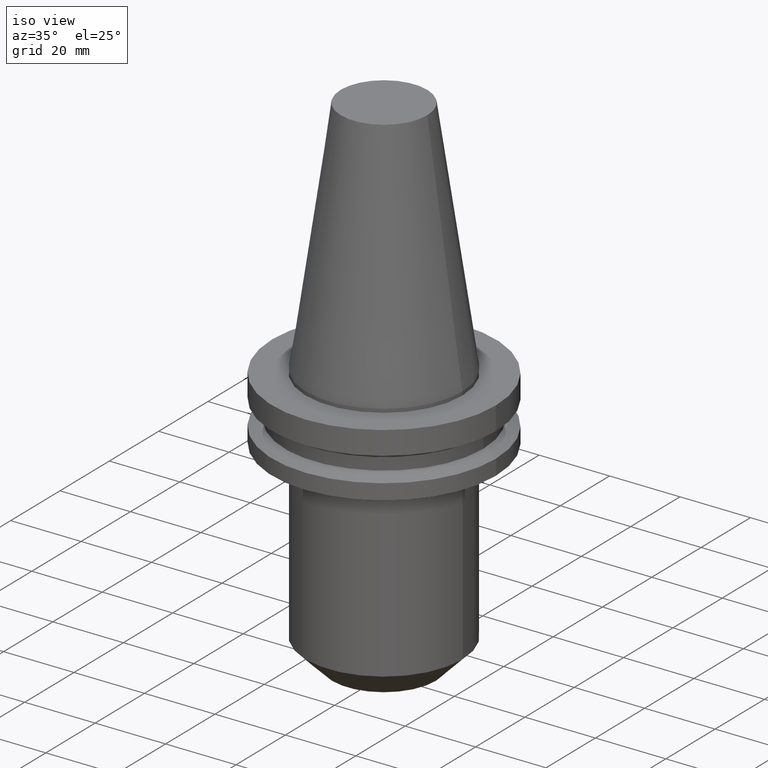
[diagram: clean part render]
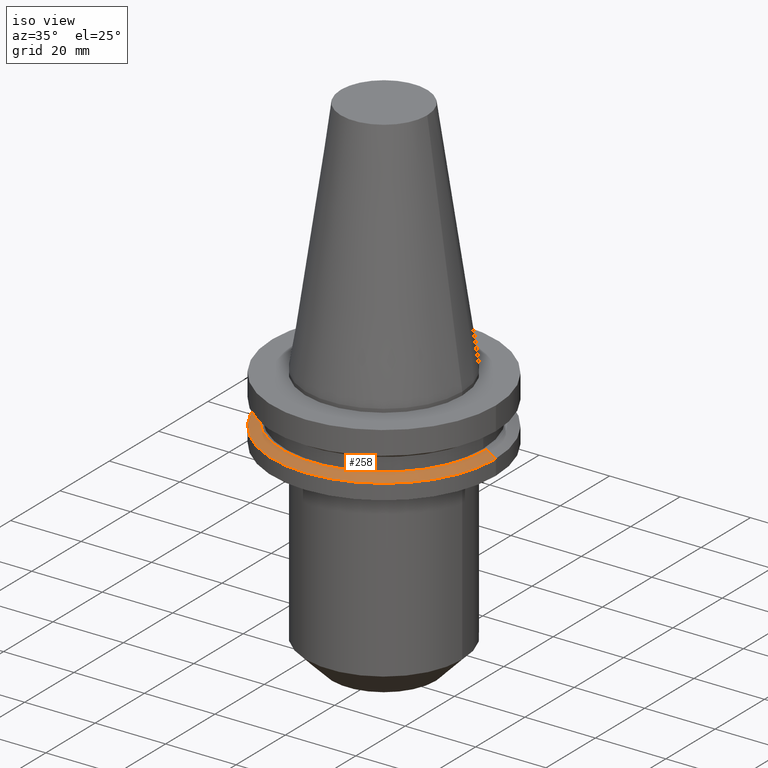
[diagram: same view with one face highlighted and labeled with its STEP entity id]
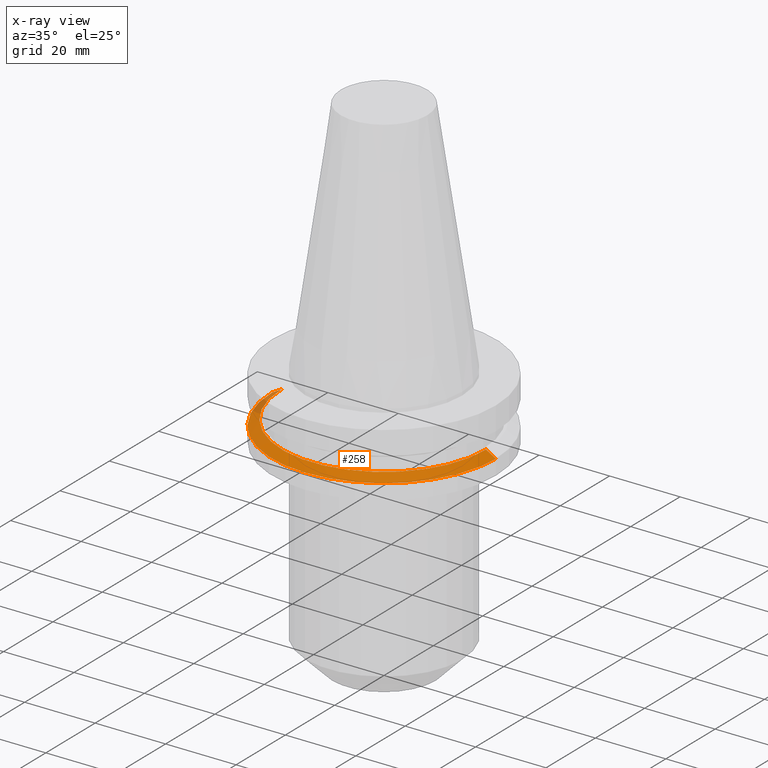
[diagram: x-ray of the same camera — body ghosted, the highlighted face saturated]
A machine part, iso view. The second image highlights one B-rep face of the part: STEP entity #258.
The next image is the same camera in x-ray: the body ghosted, the highlighted face saturated — about 4% of this face is hidden behind the body in this view.
In plain terms, the highlighted conical surface has half-angle 60 deg.
Its self-contained STEP definition (entity closure, byte-faithful):
#10 = DIRECTION ( 'NONE',  ( 0.000000000000000000, 0.000000000000000000, -1.000000000000000000 ) ) ;
#20 = DIRECTION ( 'NONE',  ( -0.000000000000000000, -0.000000000000000000, 1.000000000000000000 ) ) ;
#22 = DIRECTION ( 'NONE',  ( 0.8660254037844387076, 1.060575238724906915E-16, -0.4999999999999998890 ) ) ;
#31 = ORIENTED_EDGE ( 'NONE', *, *, #70, .F. ) ;
#36 = VERTEX_POINT ( 'NONE', #687 ) ;
#56 = FACE_OUTER_BOUND ( 'NONE', #553, .T. ) ;
#70 = EDGE_CURVE ( 'NONE', #619, #763, #386, .T. ) ;
#77 = VERTEX_POINT ( 'NONE', #436 ) ;
#126 = CARTESIAN_POINT ( 'NONE',  ( 0.000000000000000000, 0.000000000000000000, -14.65472339340266572 ) ) ;
#146 = ORIENTED_EDGE ( 'NONE', *, *, #564, .T. ) ;
#171 = CARTESIAN_POINT ( 'NONE',  ( 0.000000000000000000, 0.000000000000000000, -14.65472339340266572 ) ) ;
#192 = ORIENTED_EDGE ( 'NONE', *, *, #471, .F. ) ;
#200 = ORIENTED_EDGE ( 'NONE', *, *, #726, .T. ) ;
#257 = CARTESIAN_POINT ( 'NONE',  ( 28.97919780457008088, 3.718590885307660666E-15, -13.05499999999999794 ) ) ;
#258 = ADVANCED_FACE ( 'NONE', ( #56 ), #339, .T. ) ;
#275 = CARTESIAN_POINT ( 'NONE',  ( 31.75000000000000000, 0.000000000000000000, -14.65472339340266572 ) ) ;
#301 = DIRECTION ( 'NONE',  ( 1.000000000000000000, 0.000000000000000000, 0.000000000000000000 ) ) ;
#310 = DIRECTION ( 'NONE',  ( 1.000000000000000000, 0.000000000000000000, 0.000000000000000000 ) ) ;
#314 = CARTESIAN_POINT ( 'NONE',  ( 0.000000000000000000, 0.000000000000000000, -13.05499999999999794 ) ) ;
#339 = CONICAL_SURFACE ( 'NONE', #683, 31.75000000000000000, 1.047197551196597853 ) ;
#381 = DIRECTION ( 'NONE',  ( -0.000000000000000000, -0.000000000000000000, 1.000000000000000000 ) ) ;
#386 = LINE ( 'NONE', #629, #607 ) ;
#413 = CIRCLE ( 'NONE', #724, 28.97919780457008088 ) ;
#436 = CARTESIAN_POINT ( 'NONE',  ( -28.97919780457008088, 0.000000000000000000, -13.05499999999999794 ) ) ;
#469 = AXIS2_PLACEMENT_3D ( 'NONE', #126, #381, #301 ) ;
#471 = EDGE_CURVE ( 'NONE', #77, #619, #413, .T. ) ;
#553 = EDGE_LOOP ( 'NONE', ( #31, #192, #200, #146 ) ) ;
#564 = EDGE_CURVE ( 'NONE', #36, #763, #737, .T. ) ;
#578 = DIRECTION ( 'NONE',  ( -0.8660254037844387076, 0.000000000000000000, -0.4999999999999998890 ) ) ;
#607 = VECTOR ( 'NONE', #22, 1000.000000000000000 ) ;
#619 = VERTEX_POINT ( 'NONE', #257 ) ;
#629 = CARTESIAN_POINT ( 'NONE',  ( 31.75000000000000000, 3.888253587292846476E-15, -14.65472339340266572 ) ) ;
#633 = LINE ( 'NONE', #686, #672 ) ;
#652 = DIRECTION ( 'NONE',  ( -1.000000000000000000, 0.000000000000000000, 0.000000000000000000 ) ) ;
#672 = VECTOR ( 'NONE', #578, 1000.000000000000000 ) ;
#683 = AXIS2_PLACEMENT_3D ( 'NONE', #171, #10, #652 ) ;
#686 = CARTESIAN_POINT ( 'NONE',  ( -31.75000000000000000, 0.000000000000000000, -14.65472339340266572 ) ) ;
#687 = CARTESIAN_POINT ( 'NONE',  ( -31.75000000000000000, 3.888253587292846476E-15, -14.65472339340266572 ) ) ;
#724 = AXIS2_PLACEMENT_3D ( 'NONE', #314, #20, #310 ) ;
#726 = EDGE_CURVE ( 'NONE', #77, #36, #633, .T. ) ;
#737 = CIRCLE ( 'NONE', #469, 31.75000000000000000 ) ;
#763 = VERTEX_POINT ( 'NONE', #275 ) ;